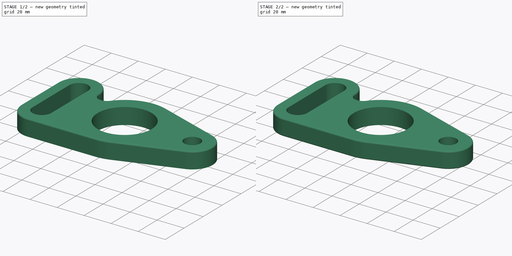
[diagram: build sequence overview — one tinted view per stage of 2, left to right]
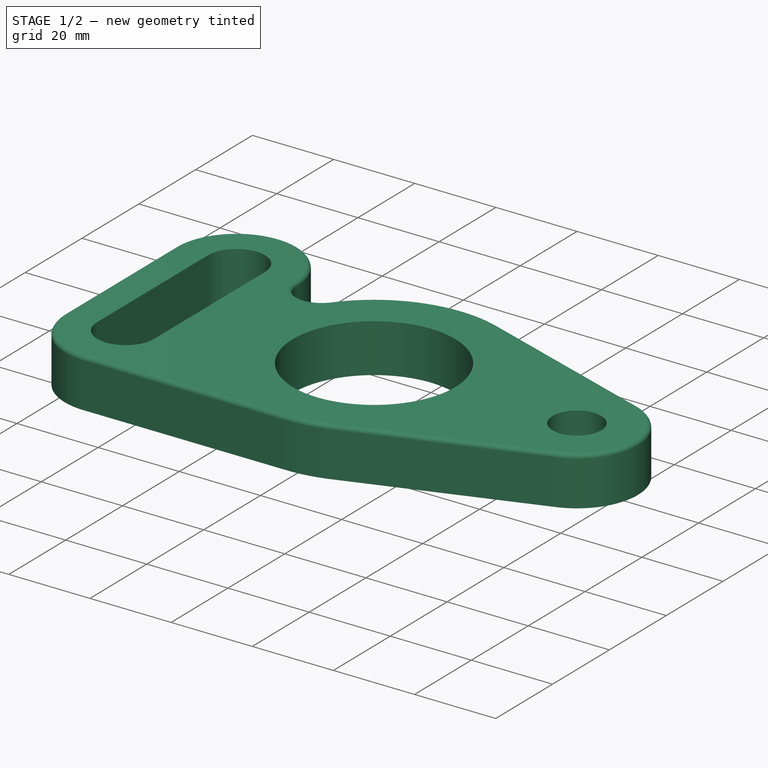
[diagram: stage 1 of 2 — iso view after this stage's code; geometry added in this stage tinted green]
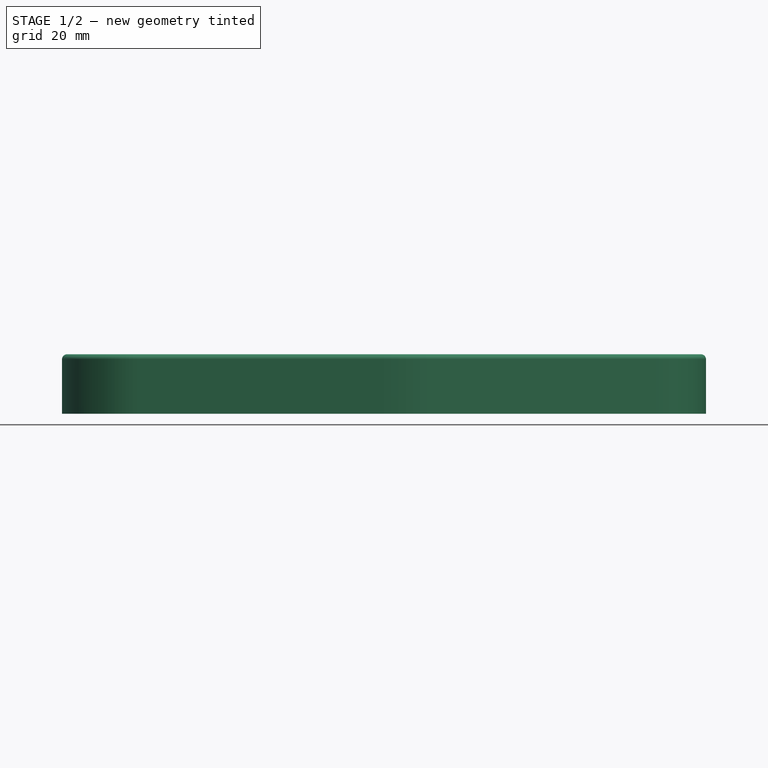
[diagram: stage 1 of 2 — front view after this stage's code; geometry added in this stage tinted green]
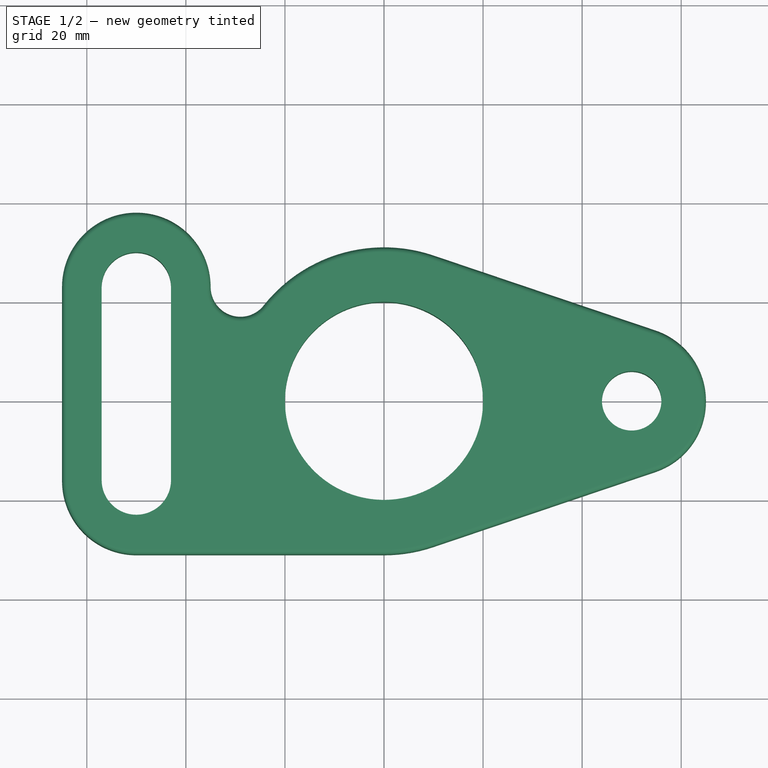
[diagram: stage 1 of 2 — top view after this stage's code; geometry added in this stage tinted green]
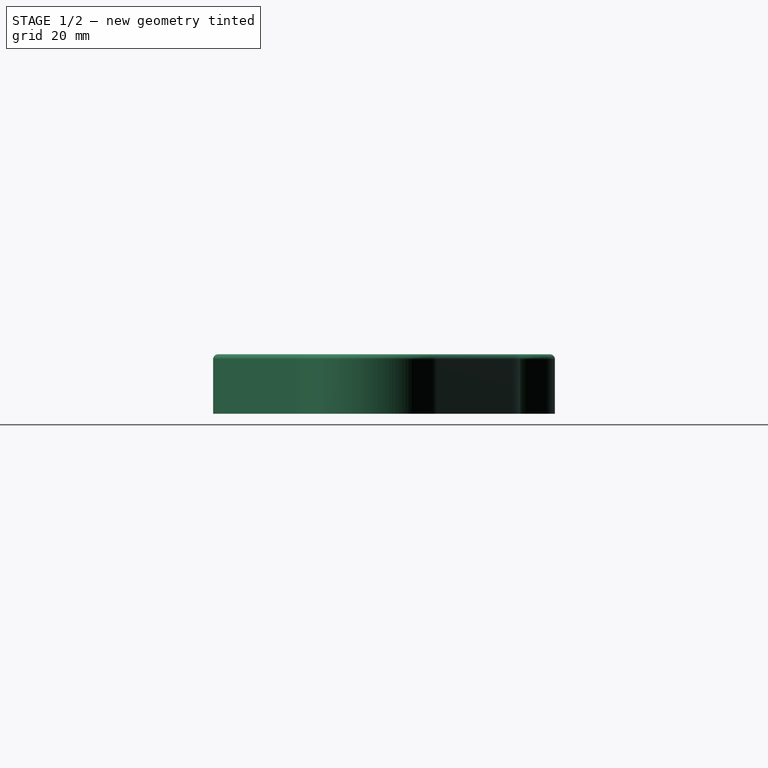
[diagram: stage 1 of 2 — right view after this stage's code; geometry added in this stage tinted green]
FCSTD DOCUMENT  (FreeCAD 0.16R6700 (Git))
Label: ejer1 final
License: All rights reserved
LicenseURL: http://en.wikipedia.org/wiki/All_rights_reserved
objects: PartDesign::Fillet×2, Sketcher::SketchObject×1, PartDesign::Pad×1
note: 5 computed .brp shape members not serialized (recipe doc carries the construction recipe); baked Part::Feature solids carry a one-line shape summary decoded from their .brp

FEATURE [Sketcher::SketchObject] Sketch
  sketch-geometry (16):
    g0: ArcOfCircle CenterX=0 CenterY=0 CenterZ=0 NormalX=0 NormalY=0 NormalZ=1 Radius=31 StartAngle=4.71239 EndAngle=5.03812
    g1: Circle CenterX=0 CenterY=0 CenterZ=0 NormalX=0 NormalY=0 NormalZ=1 Radius=20
    g2: ArcOfCircle CenterX=50 CenterY=0 CenterZ=0 NormalX=0 NormalY=0 NormalZ=1 Radius=15 StartAngle=5.03812 EndAngle=7.52825
    g3: Circle CenterX=50 CenterY=0 CenterZ=0 NormalX=0 NormalY=0 NormalZ=1 Radius=6
    g4: ArcOfCircle CenterX=-50 CenterY=-16 CenterZ=0 NormalX=0 NormalY=0 NormalZ=1 Radius=7 StartAngle=3.14159 EndAngle=6.28318
    g5: ArcOfCircle CenterX=-50 CenterY=23 CenterZ=0 NormalX=0 NormalY=0 NormalZ=1 Radius=7 StartAngle=6.28319 EndAngle=9.42478
    g6: ArcOfCircle CenterX=-50 CenterY=23 CenterZ=0 NormalX=0 NormalY=0 NormalZ=1 Radius=15 StartAngle=6.28215 EndAngle=9.42478
    g7: ArcOfCircle CenterX=-29 CenterY=22.9782 CenterZ=0 NormalX=0 NormalY=0 NormalZ=1 Radius=6 StartAngle=3.14056 EndAngle=5.61312
    g8: LineSegment StartX=-65 StartY=23 StartZ=0 EndX=-65 EndY=-16 EndZ=0
    g9: LineSegment StartX=-50 StartY=-31 StartZ=0 EndX=-5.1645e-08 EndY=-31 EndZ=0
    g10: LineSegment StartX=9.92 StartY=-29.3699 StartZ=0 EndX=54.8 EndY=-14.2113 EndZ=0
    g11: LineSegment StartX=54.8 StartY=14.2113 StartZ=0 EndX=9.92 EndY=29.3699 EndZ=0
    g12: ArcOfCircle CenterX=0 CenterY=0 CenterZ=0 NormalX=0 NormalY=0 NormalZ=1 Radius=31 StartAngle=1.24507 EndAngle=2.47153
    g13: ArcOfCircle CenterX=-50 CenterY=-16 CenterZ=0 NormalX=0 NormalY=0 NormalZ=1 Radius=15 StartAngle=3.14159 EndAngle=4.71239
    g14: LineSegment StartX=-43 StartY=23 StartZ=0 EndX=-43 EndY=-16 EndZ=0
    g15: LineSegment StartX=-57 StartY=-16 StartZ=0 EndX=-57 EndY=23 EndZ=0
  constraints (49):
    c: Coincident(g0,g-1)
    c: Coincident(g1,g-1)
    c: Radius(g0) = 31
    c: Radius(g1) = 20
    c: PointOnObject(g2,g-1)
    c: Coincident(g3,g2)
    c: Radius(g2) = 15
    c: Radius(g3) = 6
    c: DistanceX(g-1,g2) = 50
    c: Radius(g5) = 7
    c: Equal(g5,g4)
    c: DistanceX(g4,g-1) = 50
    c: DistanceX(g5,g-1) = 50
    c: DistanceY(g4,g-1) = 16
    c: DistanceY(g-1,g5) = 23
    c: Coincident(g6,g5)
    c: Radius(g6) = 15
    c: Vertical(g8)
    c: Coincident(g0,g9)
    c: Coincident(g12,g7)
    c: Equal(g0,g12)
    c: Coincident(g0,g10)
    c: Coincident(g12,g11)
    c: Coincident(g0,g12)
    c: Coincident(g6,g7)
    c: Coincident(g6,g8)
    c: Coincident(g2,g10)
    c: Coincident(g2,g11)
    c: Tangent(g8,g6)
    c: Tangent(g6,g7)
    c: Tangent(g7,g12)
    c: Tangent(g12,g11)
    c: Tangent(g11,g2)
    c: Tangent(g2,g10)
    c: Tangent(g10,g0)
    c: Tangent(g0,g9)
    c: Tangent(g8,g13) = -1.5708
    c: Tangent(g9,g13) = -1.5708
    c: Radius(g13) = 15
    c: Horizontal(g9)
    c: Radius(g7) = 6
    c: Coincident(g4,g15)
    c: Coincident(g4,g14)
    c: Coincident(g5,g14)
    c: Coincident(g5,g15)
    c: Tangent(g5,g14)
    c: Tangent(g15,g5)
    c: Tangent(g15,g4)
    c: Tangent(g14,g4)
FEATURE [PartDesign::Pad] Pad
  Length = 12
  Length2 = 100
  Sketch = -> Sketch
  Type = 0
FEATURE [PartDesign::Fillet] Fillet
  Base = -> Pad [Edge19,Edge16,Edge13,Edge10,Edge7,Edge4,Edge30,Edge28,Edge25,Edge22]
  Radius = 1
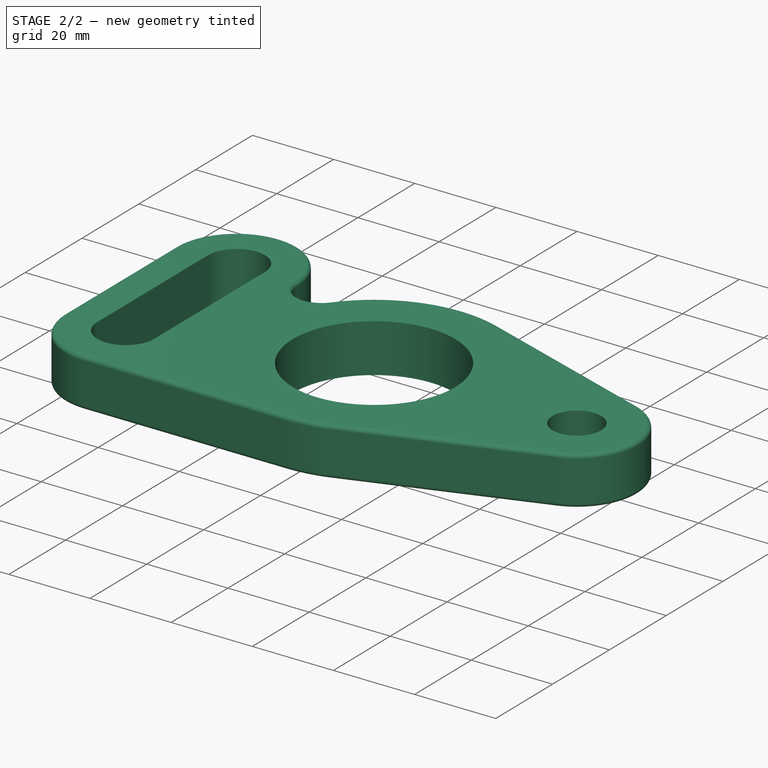
[diagram: stage 2 of 2 — iso view after this stage's code; geometry added in this stage tinted green]
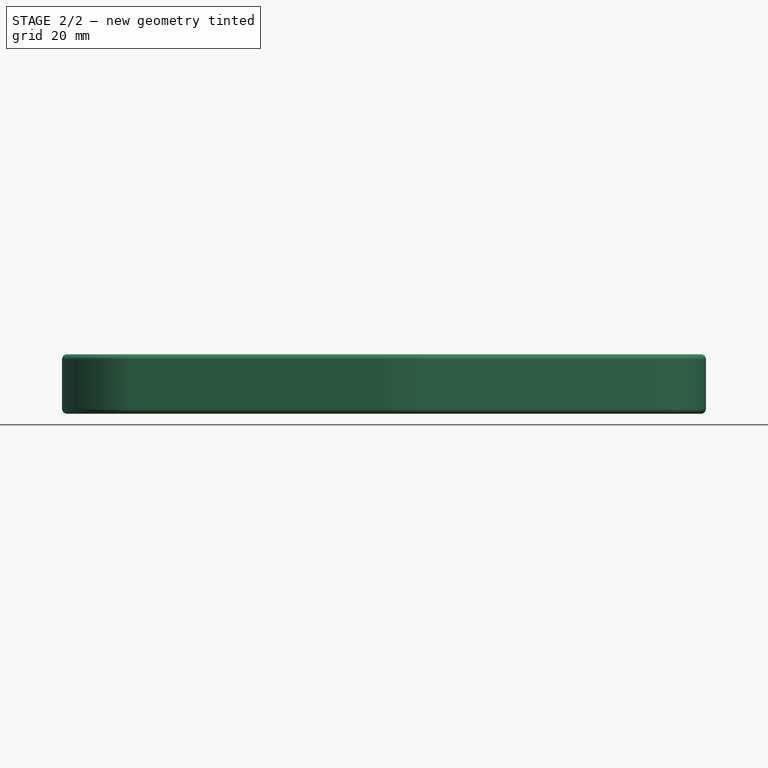
[diagram: stage 2 of 2 — front view after this stage's code; geometry added in this stage tinted green]
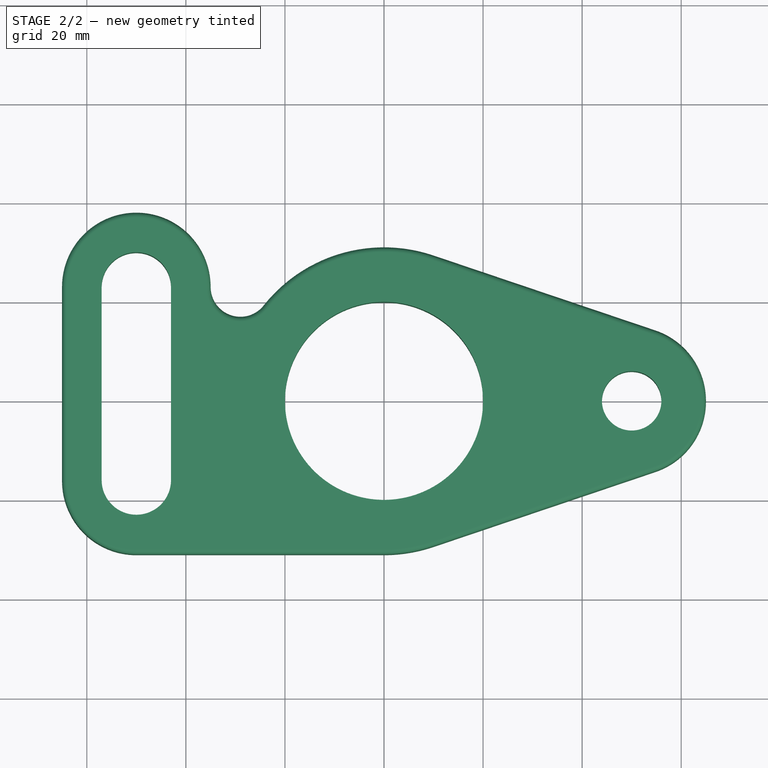
[diagram: stage 2 of 2 — top view after this stage's code; geometry added in this stage tinted green]
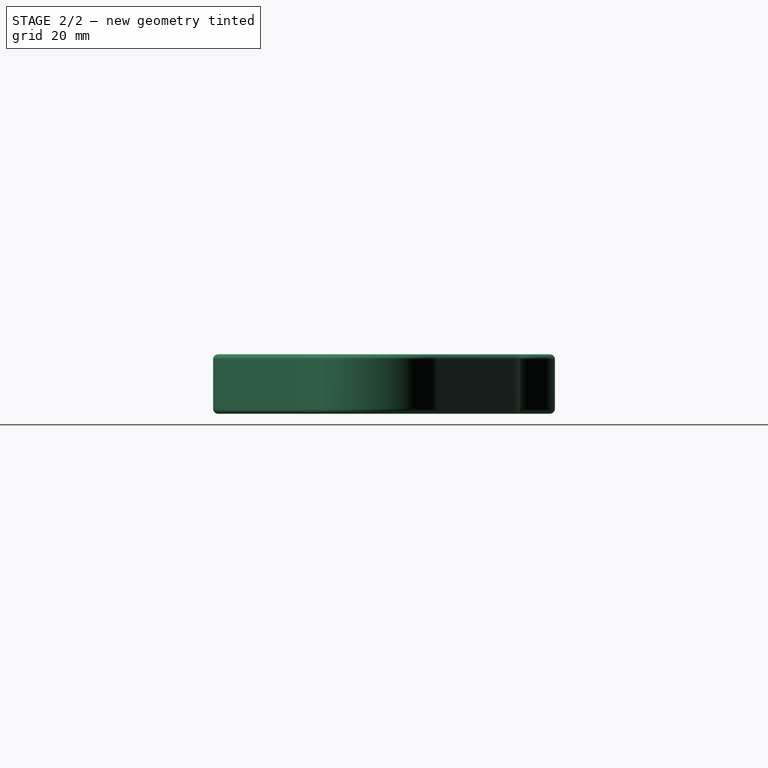
[diagram: stage 2 of 2 — right view after this stage's code; geometry added in this stage tinted green]
FEATURE [PartDesign::Fillet] Fillet001
  Base = -> Fillet [Edge14,Edge13,Edge12,Edge11,Edge3,Edge6,Edge18,Edge17,Edge16,Edge15]
  Radius = 1
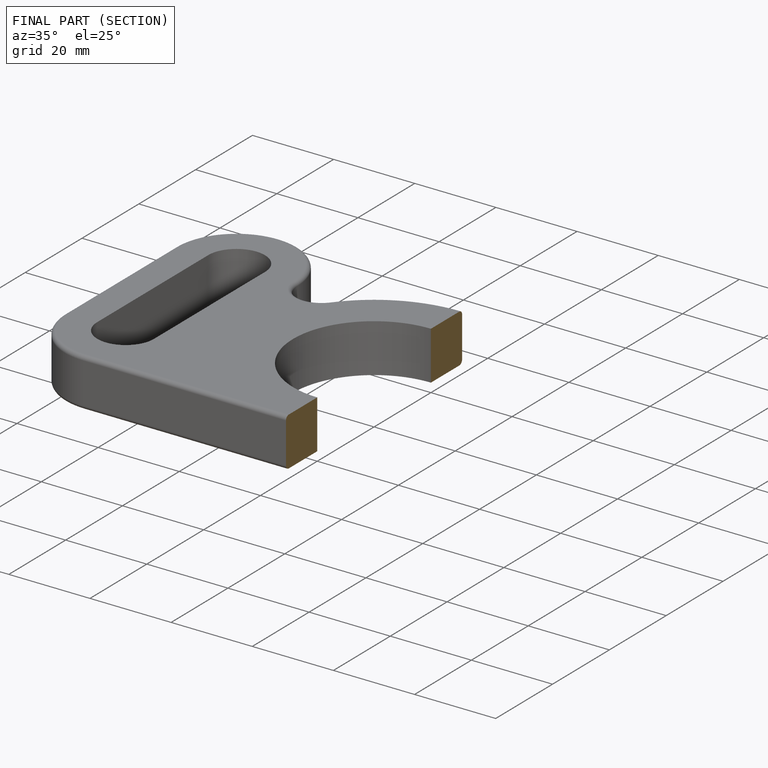
[diagram: finished part — half-section view (interior)]
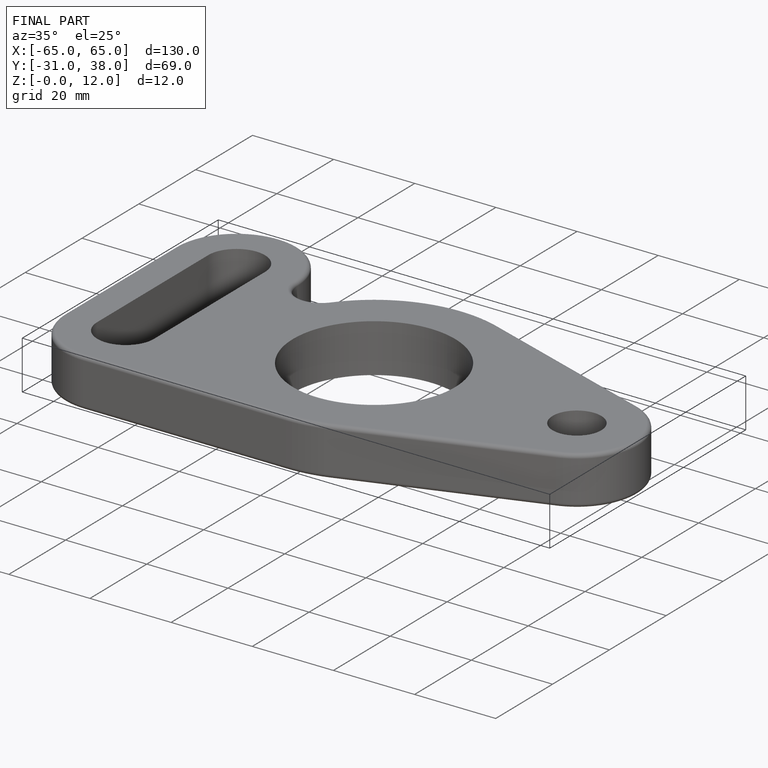
[diagram: finished part — iso view with bounding-box wireframe]
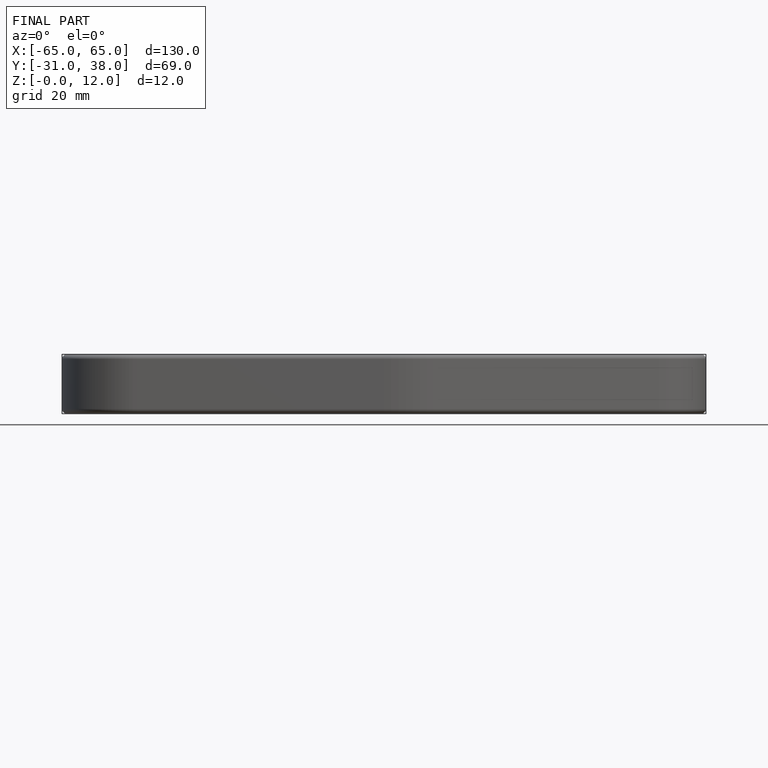
[diagram: finished part — front view with bounding-box wireframe]
